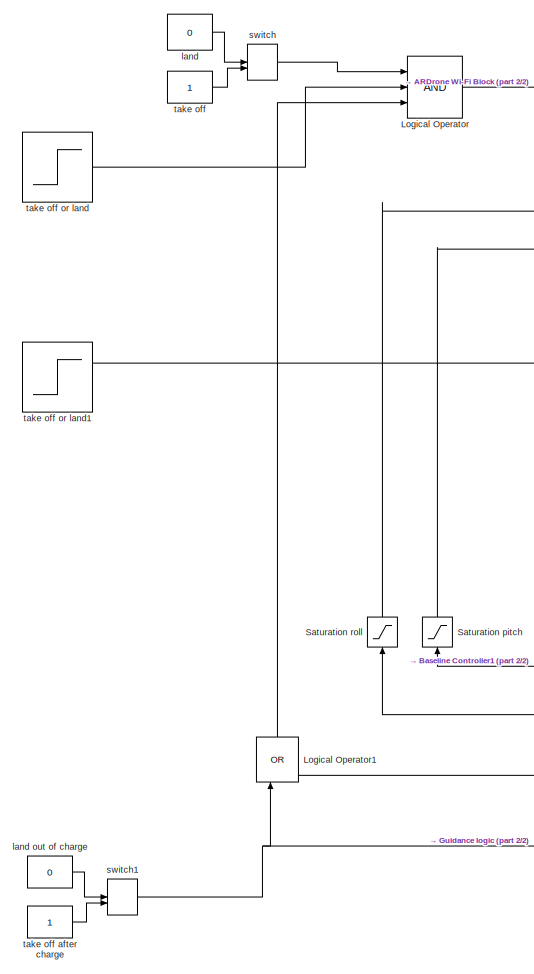
[diagram: root canvas - part 1/2, left side, full height]
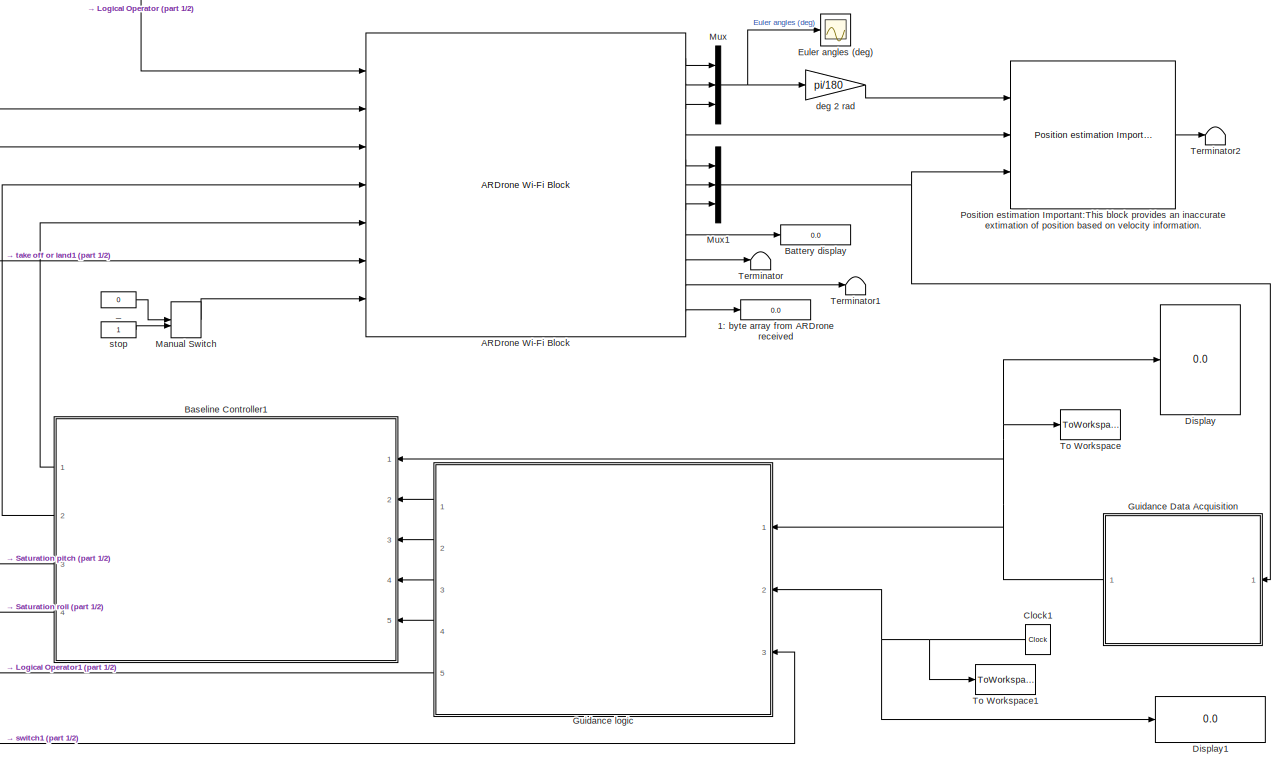
[diagram: root canvas - part 2/2, center side, full height]
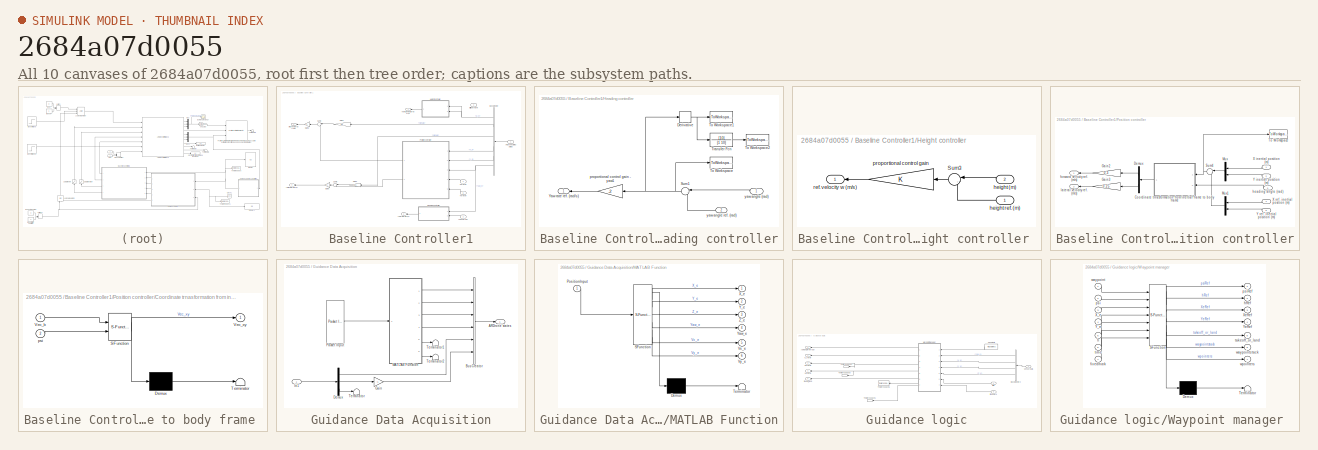
[diagram: thumbnail index - all 10 canvases of the model, root first then tree order]
MODEL slx_2684a07d0055
KIND model
BLOCK [Display] 1: byte array from ARDrone received 
  Decimation = 1
  Ports = [1]
BLOCK [Reference] ARDrone Wi-Fi  Block  REF=ARBlocks/ARDrone Wi-Fi  Block
  Ports = [7, 11]
  SourceBlock = ARBlocks/ARDrone Wi-Fi  Block
  SourceType = SubSystem
BLOCK [SubSystem] Baseline Controller1
  AncestorBlock = ARBlocks/Baseline Controller
  Ports = [5, 4]
  RequestExecContextInheritance = off
BLOCK [Inport] Baseline Controller1/ARDrone states  states 
  IconDisplay = Port number
BLOCK [BusSelector] Baseline Controller1/Bus Selector
  OutputSignals = Z_e,signal5,signal6,X_e,Y_e,Yaw_e
  Ports = [1, 6]
BLOCK [Gain] Baseline Controller1/Gain1
  Gain = 0.4
  OutDataTypeStr = Inherit: Inherit via internal rule
  ParamDataTypeStr = Inherit: Inherit via internal rule
  SaturateOnIntegerOverflow = off
BLOCK [Gain] Baseline Controller1/Gain2
  Gain = 0.25
  OutDataTypeStr = Inherit: Inherit via internal rule
  ParamDataTypeStr = Inherit: Inherit via internal rule
  SaturateOnIntegerOverflow = off
BLOCK [Gain] Baseline Controller1/Gain3
  Gain = -1
  OutDataTypeStr = Inherit: Inherit via internal rule
  ParamDataTypeStr = Inherit: Inherit via internal rule
  SaturateOnIntegerOverflow = off
BLOCK [Gain] Baseline Controller1/Gain5
  Gain = -1
  OutDataTypeStr = Inherit: Inherit via internal rule
  ParamDataTypeStr = Inherit: Inherit via internal rule
  SaturateOnIntegerOverflow = off
BLOCK [SubSystem] Baseline Controller1/Heading controller
  Ports = [2, 1]
  RequestExecContextInheritance = off
BLOCK [Derivative] Baseline Controller1/Heading controller/Derivative
BLOCK [Sum] Baseline Controller1/Heading controller/Sum1
  IconShape = round
  InputSameDT = off
  Inputs = |-+
  OutDataTypeStr = Inherit: Inherit via internal rule
  Ports = [2, 1]
  SaturateOnIntegerOverflow = off
BLOCK [ToWorkspace] Baseline Controller1/Heading controller/To Workspace
  FixptAsFi = on
  MaxDataPoints = inf
  Ports = [1]
  SampleTime = -1
  Save2DSignal = 3-D array (concatenate along third dimension)
  VariableName = e_yaw
BLOCK [ToWorkspace] Baseline Controller1/Heading controller/To Workspace1
  FixptAsFi = on
  MaxDataPoints = inf
  Ports = [1]
  SampleTime = -1
  Save2DSignal = 3-D array (concatenate along third dimension)
  VariableName = de_yaw
BLOCK [ToWorkspace] Baseline Controller1/Heading controller/To Workspace2
  FixptAsFi = on
  MaxDataPoints = inf
  Ports = [1]
  SampleTime = -1
  Save2DSignal = 3-D array (concatenate along third dimension)
  VariableName = de_yaw_filter
BLOCK [TransferFcn] Baseline Controller1/Heading controller/Transfer Fcn
  Denominator = [1 10]
  Numerator = [10]
BLOCK [Outport] Baseline Controller1/Heading controller/Yaw rate ref. (rad//s)
  IconDisplay = Port number
BLOCK [Gain] Baseline Controller1/Heading controller/proportional control gain - yaw1
  Gain = -2
  OutDataTypeStr = Inherit: Inherit via internal rule
  ParamDataTypeStr = Inherit: Inherit via internal rule
  SaturateOnIntegerOverflow = off
BLOCK [Inport] Baseline Controller1/Heading controller/yaw angle (rad)
  IconDisplay = Port number
BLOCK [Inport] Baseline Controller1/Heading controller/yaw angle ref. (rad)
  IconDisplay = Port number
  Port = 2
BLOCK [SubSystem] Baseline Controller1/Height controller 
  Ports = [2, 1]
  RequestExecContextInheritance = off
BLOCK [Sum] Baseline Controller1/Height controller /Sum3
  IconShape = round
  InputSameDT = off
  Inputs = |-+
  OutDataTypeStr = Inherit: Inherit via internal rule
  Ports = [2, 1]
  SaturateOnIntegerOverflow = off
BLOCK [Inport] Baseline Controller1/Height controller /height (m)
  IconDisplay = Port number
  Port = 2
BLOCK [Inport] Baseline Controller1/Height controller /height ref. (m)
  IconDisplay = Port number
BLOCK [Gain] Baseline Controller1/Height controller /proportional control gain
  OutDataTypeStr = Inherit: Inherit via internal rule
  ParamDataTypeStr = Inherit: Inherit via internal rule
  SaturateOnIntegerOverflow = off
BLOCK [Outport] Baseline Controller1/Height controller /ref. velocity w (m//s)
  IconDisplay = Port number
BLOCK [SubSystem] Baseline Controller1/Position controller
  Ports = [5, 2]
  RequestExecContextInheritance = off
BLOCK [SubSystem] Baseline Controller1/Position controller/Coordinate trnasformation from inertial frame to body frame 
  ErrorFcn = Stateflow.Translate.translate
  PermitHierarchicalResolution = ExplicitOnly
  Ports = [2, 1]
  RequestExecContextInheritance = off
  SFBlockType = MATLAB Function
  TreatAsAtomicUnit = on
BLOCK [Demux] Baseline Controller1/Position controller/Coordinate trnasformation from inertial frame to body frame / Demux 
  Outputs = 1
  Ports = [1, 1]
BLOCK [S-Function] Baseline Controller1/Position controller/Coordinate trnasformation from inertial frame to body frame / SFunction 
  EnableBusSupport = on
  FunctionName = sf_sfun
  PortCounts = [2 2]
  Ports = [2, 2]
  Tag = Stateflow S-Function ARDroneWPTracking 7
BLOCK [Terminator] Baseline Controller1/Position controller/Coordinate trnasformation from inertial frame to body frame / Terminator 
BLOCK [Inport] Baseline Controller1/Position controller/Coordinate trnasformation from inertial frame to body frame /Vec_b
  IconDisplay = Port number
BLOCK [Outport] Baseline Controller1/Position controller/Coordinate trnasformation from inertial frame to body frame /Vec_xy
  IconDisplay = Port number
BLOCK [Inport] Baseline Controller1/Position controller/Coordinate trnasformation from inertial frame to body frame /psi
  IconDisplay = Port number
  Port = 2
BLOCK [Demux] Baseline Controller1/Position controller/Demux
  DisplayOption = bar
  Outputs = 2
  Ports = [1, 2]
BLOCK [Gain] Baseline Controller1/Position controller/Gain2
  Gain = 0.3
  OutDataTypeStr = Inherit: Inherit via internal rule
  ParamDataTypeStr = Inherit: Inherit via internal rule
  SaturateOnIntegerOverflow = off
BLOCK [Gain] Baseline Controller1/Position controller/Gain3
  Gain = 0.25
  OutDataTypeStr = Inherit: Inherit via internal rule
  ParamDataTypeStr = Inherit: Inherit via internal rule
  SaturateOnIntegerOverflow = off
BLOCK [Mux] Baseline Controller1/Position controller/Mux
  DisplayOption = bar
  Inputs = 2
  Ports = [2, 1]
BLOCK [Mux] Baseline Controller1/Position controller/Mux1
  DisplayOption = bar
  Inputs = 2
  Ports = [2, 1]
BLOCK [Sum] Baseline Controller1/Position controller/Sum4
  IconShape = round
  InputSameDT = off
  Inputs = |-+
  OutDataTypeStr = Inherit: Inherit via internal rule
  Ports = [2, 1]
  SaturateOnIntegerOverflow = off
BLOCK [ToWorkspace] Baseline Controller1/Position controller/To Workspace
  FixptAsFi = on
  MaxDataPoints = inf
  Ports = [1]
  SampleTime = -1
  Save2DSignal = 3-D array (concatenate along third dimension)
  VariableName = e_out
BLOCK [Inport] Baseline Controller1/Position controller/X inertial position (m)
  IconDisplay = Port number
BLOCK [Inport] Baseline Controller1/Position controller/X ref. inertial position (m)
  IconDisplay = Port number
  Port = 4
BLOCK [Inport] Baseline Controller1/Position controller/Y inertial position (m)
  IconDisplay = Port number
  Port = 2
BLOCK [Inport] Baseline Controller1/Position controller/Y ref. inertial position (m)
  IconDisplay = Port number
  Port = 5
BLOCK [Outport] Baseline Controller1/Position controller/forward velocity ref. (m//s)
  IconDisplay = Port number
BLOCK [Inport] Baseline Controller1/Position controller/heading angle (rad)
  IconDisplay = Port number
  Port = 3
BLOCK [Outport] Baseline Controller1/Position controller/lateral velocity ref. (m//s)
  IconDisplay = Port number
  Port = 2
BLOCK [Sum] Baseline Controller1/Sum2
  IconShape = round
  InputSameDT = off
  Inputs = |-+
  OutDataTypeStr = Inherit: Inherit via internal rule
  Ports = [2, 1]
  SaturateOnIntegerOverflow = off
BLOCK [Sum] Baseline Controller1/Sum5
  IconShape = round
  InputSameDT = off
  Inputs = |-+
  OutDataTypeStr = Inherit: Inherit via internal rule
  Ports = [2, 1]
  SaturateOnIntegerOverflow = off
BLOCK [Inport] Baseline Controller1/Xe ref (m)
  IconDisplay = Port number
  Port = 4
BLOCK [Inport] Baseline Controller1/Ye ref (m)
  IconDisplay = Port number
  Port = 5
BLOCK [Inport] Baseline Controller1/altitude ref. (m)
  IconDisplay = Port number
  Port = 3
BLOCK [Outport] Baseline Controller1/pitch angle ref. (rad)
  IconDisplay = Port number
  Port = 3
BLOCK [Outport] Baseline Controller1/roll angle ref. [-1,1]
  IconDisplay = Port number
  Port = 4
BLOCK [Outport] Baseline Controller1/vertical velocity ref. [-1,1]
  IconDisplay = Port number
BLOCK [Outport] Baseline Controller1/yaw rate ref [-1,1]
  IconDisplay = Port number
  Port = 2
BLOCK [Inport] Baseline Controller1/yaw ref. (rad)
  IconDisplay = Port number
  Port = 2
BLOCK [Display] Battery display
  Decimation = 1
  Ports = [1]
BLOCK [Clock] Clock1
  DisplayTime = on
BLOCK [Display] Display
  Decimation = 1
  Ports = [1]
BLOCK [Display] Display1
  Decimation = 1
  Ports = [1]
BLOCK [Scope] Euler angles (deg)
  DataFormat = StructureWithTime
  Floating = off
  MaxDataPoints = 500000
  NumInputPorts = 1
  Ports = [1]
  SampleTime = 0
  ShowLegends = off
  YMax = 120
  YMin = -10
BLOCK [SubSystem] Guidance Data Acquisition
  AncestorBlock = ARBlocks/Guidance Data Acquisition
  Ports = [1, 1]
  RequestExecContextInheritance = off
BLOCK [Outport] Guidance Data Acquisition/ARDrone states
  IconDisplay = Port number
BLOCK [BusCreator] Guidance Data Acquisition/Bus Creator
  DisplayOption = bar
  Inputs = 6
  Ports = [6, 1]
BLOCK [Demux] Guidance Data Acquisition/Demux
  DisplayOption = bar
  Outputs = 3
  Ports = [1, 3]
BLOCK [Gain] Guidance Data Acquisition/Gain
  Gain = -1
  OutDataTypeStr = Inherit: Inherit via internal rule
  ParamDataTypeStr = Inherit: Inherit via internal rule
  SaturateOnIntegerOverflow = off
BLOCK [Inport] Guidance Data Acquisition/In1
  IconDisplay = Port number
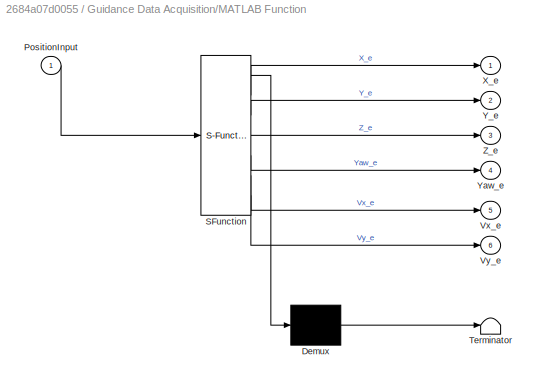
BLOCK [SubSystem] Guidance Data Acquisition/MATLAB Function
  ErrorFcn = Stateflow.Translate.translate
  PermitHierarchicalResolution = ExplicitOnly
  Ports = [1, 6]
  RequestExecContextInheritance = off
  SFBlockType = MATLAB Function
  TreatAsAtomicUnit = on
BLOCK [Demux] Guidance Data Acquisition/MATLAB Function/ Demux 
  Outputs = 1
  Ports = [1, 1]
BLOCK [S-Function] Guidance Data Acquisition/MATLAB Function/ SFunction 
  EnableBusSupport = on
  FunctionName = sf_sfun
  PortCounts = [1 7]
  Ports = [1, 7]
  Tag = Stateflow S-Function ARDroneWPTracking 8
BLOCK [Terminator] Guidance Data Acquisition/MATLAB Function/ Terminator 
BLOCK [Inport] Guidance Data Acquisition/MATLAB Function/PositionInput
  IconDisplay = Port number
BLOCK [Outport] Guidance Data Acquisition/MATLAB Function/Vx_e
  IconDisplay = Port number
  Port = 5
BLOCK [Outport] Guidance Data Acquisition/MATLAB Function/Vy_e
  IconDisplay = Port number
  Port = 6
BLOCK [Outport] Guidance Data Acquisition/MATLAB Function/X_e
  IconDisplay = Port number
BLOCK [Outport] Guidance Data Acquisition/MATLAB Function/Y_e
  IconDisplay = Port number
  Port = 2
BLOCK [Outport] Guidance Data Acquisition/MATLAB Function/Yaw_e
  IconDisplay = Port number
  Port = 4
BLOCK [Outport] Guidance Data Acquisition/MATLAB Function/Z_e
  IconDisplay = Port number
  Port = 3
BLOCK [Reference] Guidance Data Acquisition/Packet Input  REF=rtwinlib/Packet Input
  AttributesFormatString = Standard Devices\nUDP Protocol [157Ch]
  ByteOrder = 2
  DataTypes = '4*double'
  DrvAddress = 5500
  DrvName = Standard_Devices/UDP_Protocol
  DrvOptions = [3215458314 5500]
  MaxMissedTicks = 1
  PacketID = 1
  PacketSize = 32
  Ports = [0, 1]
  SampleTime = sampleTime
  ShowError = off
  ShowMissedTicks = off
  ShowReady = off
  ShowTimestamp = off
  SourceBlock = rtwinlib/Packet Input
  SourceType = RTWin Packet Input
  YieldWhenWaiting = on
BLOCK [Terminator] Guidance Data Acquisition/Terminator
BLOCK [Terminator] Guidance Data Acquisition/Terminator1
BLOCK [Terminator] Guidance Data Acquisition/Terminator2
BLOCK [SubSystem] Guidance logic
  AncestorBlock = ARBlocks/Guidance logic
  Ports = [3, 5]
  RequestExecContextInheritance = off
BLOCK [BusSelector] Guidance logic/Bus Selector2
  OutputSignals = Yaw_e,X_e,Y_e,Z_e
  Ports = [1, 4]
BLOCK [Constant] Guidance logic/Constant5
  Value = waypoints
  VectorParams1D = off
BLOCK [ToWorkspace] Guidance logic/To Workspace1
  MaxDataPoints = inf
  Ports = [1]
  SampleTime = sampleTime
  VariableName = wpointers
BLOCK [ToWorkspace] Guidance logic/To Workspace2
  MaxDataPoints = inf
  Ports = [1]
  SampleTime = sampleTime
  VariableName = Xe
BLOCK [ToWorkspace] Guidance logic/To Workspace3
  MaxDataPoints = inf
  Ports = [1]
  SampleTime = sampleTime
  VariableName = Ye
BLOCK [ToWorkspace] Guidance logic/To Workspace6
  MaxDataPoints = inf
  Ports = [1]
  SampleTime = sampleTime
  VariableName = waypointstack
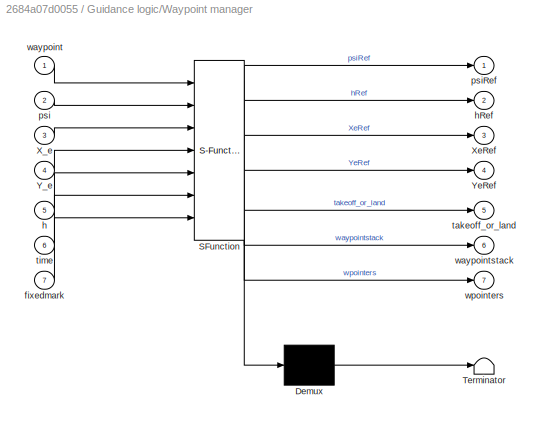
BLOCK [SubSystem] Guidance logic/Waypoint manager 
  ErrorFcn = Stateflow.Translate.translate
  PermitHierarchicalResolution = ExplicitOnly
  Ports = [7, 7]
  RequestExecContextInheritance = off
  SFBlockType = MATLAB Function
  TreatAsAtomicUnit = on
BLOCK [Demux] Guidance logic/Waypoint manager / Demux 
  Outputs = 1
  Ports = [1, 1]
BLOCK [S-Function] Guidance logic/Waypoint manager / SFunction 
  EnableBusSupport = on
  FunctionName = sf_sfun
  PortCounts = [7 8]
  Ports = [7, 8]
  Tag = Stateflow S-Function ARDroneWPTracking 9
BLOCK [Terminator] Guidance logic/Waypoint manager / Terminator 
BLOCK [Inport] Guidance logic/Waypoint manager /X_e
  IconDisplay = Port number
  Port = 3
BLOCK [Outport] Guidance logic/Waypoint manager /XeRef
  IconDisplay = Port number
  Port = 3
BLOCK [Inport] Guidance logic/Waypoint manager /Y_e
  IconDisplay = Port number
  Port = 4
BLOCK [Outport] Guidance logic/Waypoint manager /YeRef
  IconDisplay = Port number
  Port = 4
BLOCK [Inport] Guidance logic/Waypoint manager /fixedmark
  IconDisplay = Port number
  Port = 7
BLOCK [Inport] Guidance logic/Waypoint manager /h
  IconDisplay = Port number
  Port = 5
BLOCK [Outport] Guidance logic/Waypoint manager /hRef
  IconDisplay = Port number
  Port = 2
BLOCK [Inport] Guidance logic/Waypoint manager /psi
  IconDisplay = Port number
  Port = 2
BLOCK [Outport] Guidance logic/Waypoint manager /psiRef
  IconDisplay = Port number
BLOCK [Outport] Guidance logic/Waypoint manager /takeoff_or_land
  IconDisplay = Port number
  Port = 5
BLOCK [Inport] Guidance logic/Waypoint manager /time
  IconDisplay = Port number
  Port = 6
BLOCK [Inport] Guidance logic/Waypoint manager /waypoint
  IconDisplay = Port number
BLOCK [Outport] Guidance logic/Waypoint manager /waypointstack
  IconDisplay = Port number
  Port = 6
BLOCK [Outport] Guidance logic/Waypoint manager /wpointers
  IconDisplay = Port number
  Port = 7
BLOCK [Outport] Guidance logic/Xe ref (m)
  IconDisplay = Port number
  Port = 3
BLOCK [Outport] Guidance logic/Ye ref (m)
  IconDisplay = Port number
  Port = 4
BLOCK [Inport] Guidance logic/fixedmark
  IconDisplay = Port number
  Port = 3
BLOCK [Outport] Guidance logic/h_ref (m)
  IconDisplay = Port number
  Port = 2
BLOCK [Inport] Guidance logic/sensor data
  IconDisplay = Port number
BLOCK [Outport] Guidance logic/takeoff_land
  IconDisplay = Port number
  Port = 5
BLOCK [Inport] Guidance logic/time
  IconDisplay = Port number
  Port = 2
BLOCK [Outport] Guidance logic/yaw angle ref (rad)
  IconDisplay = Port number
BLOCK [Logic] Logical Operator
  AllPortsSameDT = off
  Inputs = 3
  OutDataTypeStr = boolean
  Ports = [3, 1]
BLOCK [Logic] Logical Operator1
  AllPortsSameDT = off
  Operator = OR
  OutDataTypeStr = boolean
  Ports = [2, 1]
BLOCK [ManualSwitch] Manual Switch
BLOCK [Mux] Mux
  DisplayOption = bar
  Inputs = 3
  Ports = [3, 1]
BLOCK [Mux] Mux1
  DisplayOption = bar
  Inputs = 3
  Ports = [3, 1]
BLOCK [Reference] Position estimation Important:This block provides an inaccurate extimation of position based on  velocity information.   REF=ARBlocks/Position estimation
Important:This block provides an 
inaccurate extimation of position 
based on  velocity information. 
  Ports = [3, 1]
  SourceBlock = ARBlocks/Position estimation\nImportant:This block provides an \ninaccurate extimation of position \nbased on  velocity information.
  SourceType = SubSystem
BLOCK [Saturate] Saturation pitch
  InputPortMap = u0
  LowerLimit = -0.1
  Ports = [1, 1]
  UpperLimit = 0.08
BLOCK [Saturate] Saturation roll
  InputPortMap = u0
  LowerLimit = -0.1
  Ports = [1, 1]
  UpperLimit = 0.05
BLOCK [Terminator] Terminator
BLOCK [Terminator] Terminator1
BLOCK [Terminator] Terminator2
BLOCK [ToWorkspace] To Workspace
  MaxDataPoints = inf
  Ports = [1]
  SampleTime = sampleTime
  SaveFormat = Structure With Time
  VariableName = position
BLOCK [ToWorkspace] To Workspace1
  MaxDataPoints = inf
  Ports = [1]
  SampleTime = sampleTime
  VariableName = timeRT
BLOCK [Constant] _
  Value = 0
BLOCK [Gain] deg 2 rad
  Gain = pi/180
  OutDataTypeStr = Inherit: Inherit via internal rule
  ParamDataTypeStr = Inherit: Inherit via internal rule
  SaturateOnIntegerOverflow = off
BLOCK [Constant] land
  Value = 0
BLOCK [Constant] land out of charge
  Value = 0
BLOCK [Constant] stop
BLOCK [ManualSwitch] switch
BLOCK [ManualSwitch] switch1
BLOCK [Constant] take off
BLOCK [Constant] take off after charge
BLOCK [Step] take off or land
  SampleTime = 0
  Time = 5
BLOCK [Step] take off or land1
  SampleTime = 0
  Time = 10
LINE ARDrone Wi-Fi  Block:1 -> Mux:1
LINE ARDrone Wi-Fi  Block:10 -> Terminator1:1
LINE ARDrone Wi-Fi  Block:11 -> 1: byte array from ARDrone received :1
LINE ARDrone Wi-Fi  Block:2 -> Mux:2
LINE ARDrone Wi-Fi  Block:3 -> Mux:3
LINE ARDrone Wi-Fi  Block:4 -> Position estimation Important:This block provides an inaccurate extimation of position based on  velocity information. :2
LINE ARDrone Wi-Fi  Block:5 -> Mux1:1
LINE ARDrone Wi-Fi  Block:6 -> Mux1:2
LINE ARDrone Wi-Fi  Block:7 -> Mux1:3
LINE ARDrone Wi-Fi  Block:8 -> Battery display:1
LINE ARDrone Wi-Fi  Block:9 -> Terminator:1
LINE Baseline Controller1:1 -> ARDrone Wi-Fi  Block:5
LINE Baseline Controller1:2 -> ARDrone Wi-Fi  Block:4
LINE Baseline Controller1:3 -> Saturation pitch:1
LINE Baseline Controller1:4 -> Saturation roll:1
NET Clock1:1 -> Display1:1, Guidance logic:2, To Workspace1:1
NET Guidance Data Acquisition:1 -> Baseline Controller1:1, Display:1, Guidance logic:1, To Workspace:1
LINE Guidance logic:1 -> Baseline Controller1:2
LINE Guidance logic:2 -> Baseline Controller1:3
LINE Guidance logic:3 -> Baseline Controller1:4
LINE Guidance logic:4 -> Baseline Controller1:5
LINE Guidance logic:5 -> Logical Operator1:2
LINE Logical Operator1:1 -> Logical Operator:3
LINE Logical Operator:1 -> ARDrone Wi-Fi  Block:1
LINE Manual Switch:1 -> ARDrone Wi-Fi  Block:7
NET Mux1:1 -> Guidance Data Acquisition:1, Position estimation Important:This block provides an inaccurate extimation of position based on  velocity information. :3
NET Mux:1 -> Euler angles (deg):1, deg 2 rad:1
LINE Position estimation Important:This block provides an inaccurate extimation of position based on  velocity information. :1 -> Terminator2:1
LINE Saturation pitch:1 -> ARDrone Wi-Fi  Block:3
LINE Saturation roll:1 -> ARDrone Wi-Fi  Block:2
LINE _:1 -> Manual Switch:1
LINE deg 2 rad:1 -> Position estimation Important:This block provides an inaccurate extimation of position based on  velocity information. :1
LINE land out of charge:1 -> switch1:1
LINE land:1 -> switch:1
LINE stop:1 -> Manual Switch:2
NET switch1:1 -> Guidance logic:3, Logical Operator1:1
LINE switch:1 -> Logical Operator:1
LINE take off after charge:1 -> switch1:2
LINE take off or land1:1 -> ARDrone Wi-Fi  Block:6
LINE take off or land:1 -> Logical Operator:2
LINE take off:1 -> switch:2
note: NET lines group one-source signal fan-out (src -> all destinations, sorted); 1:1 wires keep LINE
